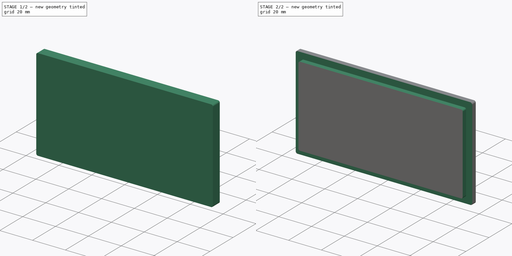
[diagram: build sequence overview — one tinted view per stage of 2, left to right]
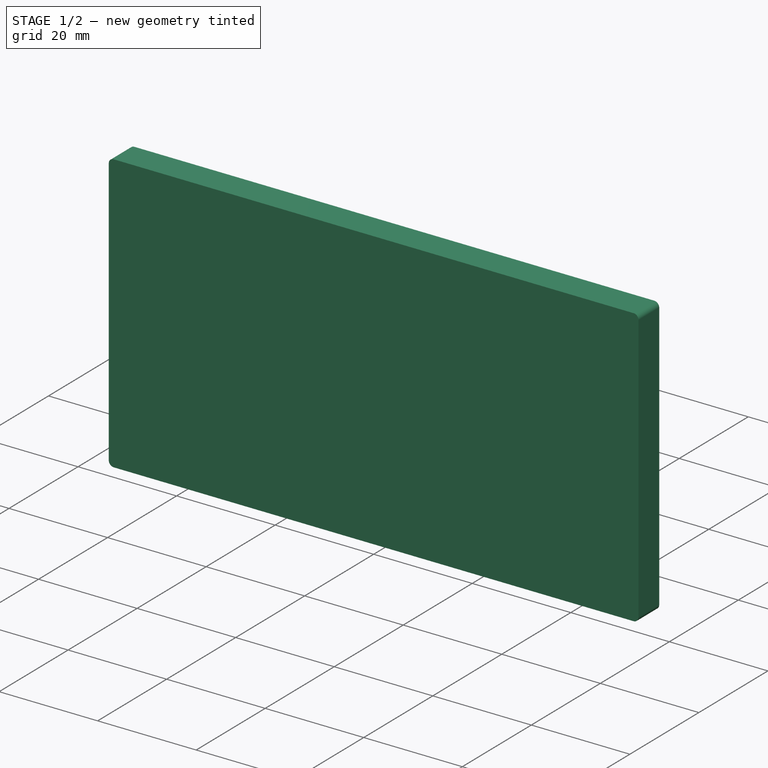
[diagram: stage 1 of 2 — iso view after this stage's code; geometry added in this stage tinted green]
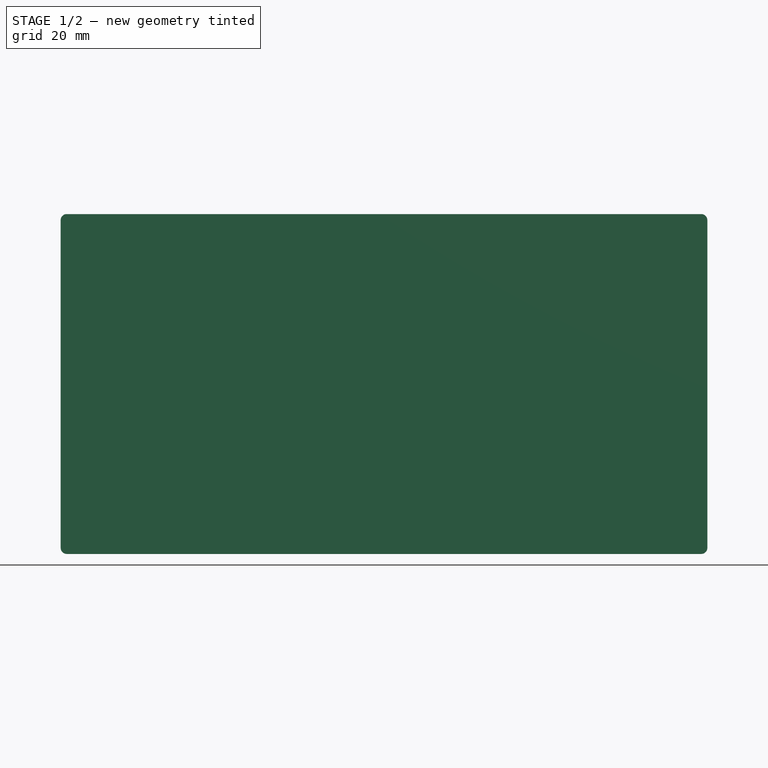
[diagram: stage 1 of 2 — front view after this stage's code; geometry added in this stage tinted green]
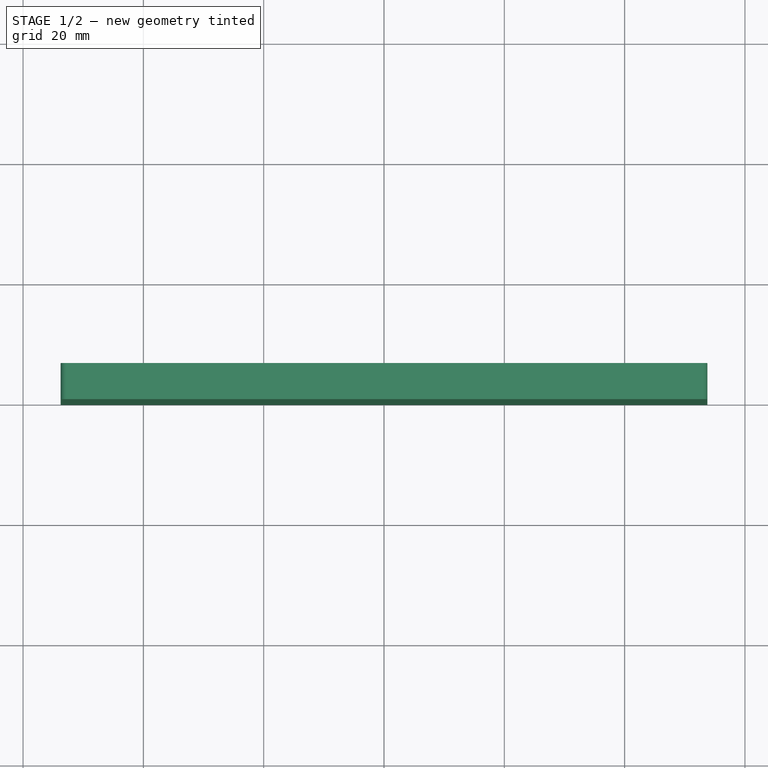
[diagram: stage 1 of 2 — top view after this stage's code; geometry added in this stage tinted green]
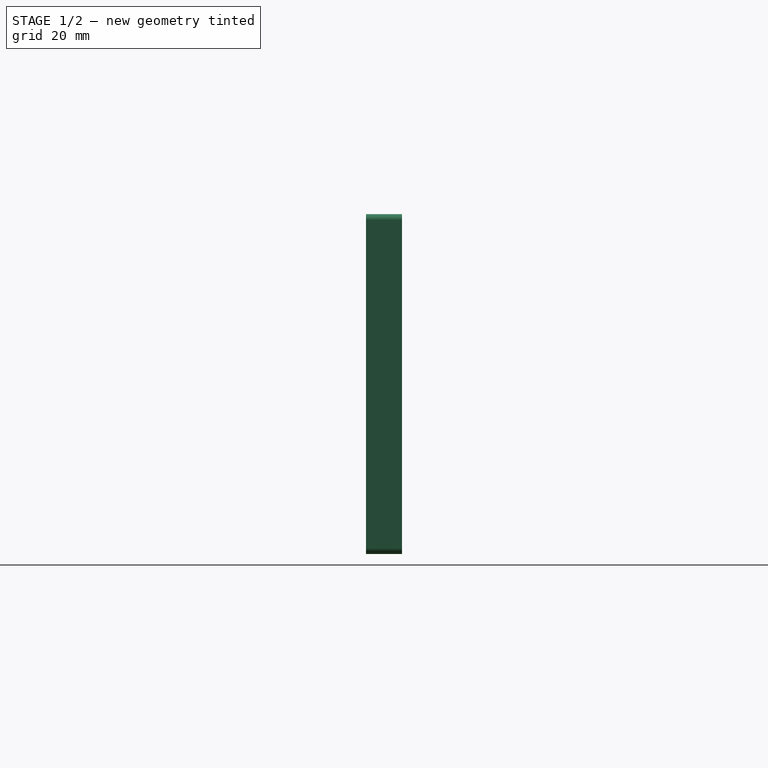
[diagram: stage 1 of 2 — right view after this stage's code; geometry added in this stage tinted green]
FCSTD DOCUMENT  (FreeCAD 0.19R24291 (Git))
Label: FrontWindow
License: All rights reserved
LicenseURL: http://en.wikipedia.org/wiki/All_rights_reserved
objects: PartDesign::CoordinateSystem×2, Sketcher::SketchObject×2, App::FeaturePython×1, PartDesign::Pad×1, PartDesign::Pocket×1, PartDesign::Body×1, App::Part×1
note: 9 computed .brp shape members not serialized (recipe doc carries the construction recipe); baked Part::Feature solids carry a one-line shape summary decoded from their .brp

FEATURE [PartDesign::CoordinateSystem] LCS_0
  AttacherType = Attacher::AttachEngine3D
  MapMode = 2
  Support = -> [X_Axis]
FEATURE [PartDesign::CoordinateSystem] LCS_0001
  AttacherType = Attacher::AttachEngine3D
  MapMode = 2
  Support = -> [X_Axis001]
FEATURE [Sketcher::SketchObject] Sketch
  FullyConstrained = true
  MapMode = 5
  Placement = pos=(0,0,0) rot=(1,0,0;1.5708rad)
  Support = -> [XZ_Plane001]
  expr: Constraints[31] = <<Attributes>>.LogicSpaceCornerRadius
  expr: Constraints[5] = <<Attributes>>.DrawerHeight_DH - <<Attributes>>.WallThickness_WT / 4 - <<Attributes>>.WallThickness_WT / 4
  expr: Constraints[4] = <<Attributes>>.DrawerWidth_DW + <<Attributes>>.SideLengt * 2 - (<<Attributes>>.SideLengt + <<Attributes>>.WallThickness_WT * 2 + <<Attributes>>.LogicSpaceCornerRadius) + <<Attributes>>.WallThickness_WT / 4 - (<<Attributes>>.DrawerWidth_DW + <<Attributes>>.SideLengt * 2 - (<<Attributes>>.SideLengt + <<Attributes>>.WallThickness_WT * 2 + <<Attributes>>.LogicSpaceCornerRadius + <<Attributes>>.LogicSpaceWidth) - <<Attributes>>.WallThickness_WT / 4)
  sketch-geometry (14):
    g0: LineSegment StartX=-52.75 StartY=28.25 StartZ=0 EndX=52.75 EndY=28.25 EndZ=0
    g1: LineSegment StartX=53.75 StartY=27.25 StartZ=0 EndX=53.75 EndY=-27.25 EndZ=0
    g2: LineSegment StartX=52.75 StartY=-28.25 StartZ=0 EndX=-52.75 EndY=-28.25 EndZ=0
    g3: LineSegment StartX=-53.75 StartY=-27.25 StartZ=0 EndX=-53.75 EndY=27.25 EndZ=0
    g4: ArcOfCircle CenterX=-52.75 CenterY=27.25 CenterZ=0 NormalX=0 NormalY=0 NormalZ=1 AngleXU=0 Radius=1 StartAngle=1.5708 EndAngle=3.14159
    g5: GeomPoint X=-53.75 Y=28.25 Z=0
    g6: ArcOfCircle CenterX=52.75 CenterY=27.25 CenterZ=0 NormalX=0 NormalY=0 NormalZ=1 AngleXU=0 Radius=1 StartAngle=-2.84e-14 EndAngle=1.5708
    g7: GeomPoint X=53.75 Y=28.25 Z=0
    g8: ArcOfCircle CenterX=52.75 CenterY=-27.25 CenterZ=0 NormalX=0 NormalY=0 NormalZ=1 AngleXU=0 Radius=1 StartAngle=4.71239 EndAngle=6.28319
    g9: GeomPoint X=53.75 Y=-28.25 Z=0
    g10: ArcOfCircle CenterX=-52.75 CenterY=-27.25 CenterZ=0 NormalX=0 NormalY=0 NormalZ=1 AngleXU=0 Radius=1 StartAngle=3.14159 EndAngle=4.71239
    g11: GeomPoint X=-53.75 Y=-28.25 Z=0
    g12: LineSegment StartX=-52.75 StartY=-27.25 StartZ=0 EndX=52.75 EndY=27.25 EndZ=0
    g13: LineSegment StartX=-52.75 StartY=27.25 StartZ=0 EndX=52.75 EndY=-27.25 EndZ=0
  constraints (32):
    c: Horizontal(g0)
    c: Horizontal(g2)
    c: Vertical(g1)
    c: Vertical(g3)
    c: Distance(g7,g5) = 107.5
    c: Distance(g11,g5) = 56.5
    c: PointOnObject(g5,g0)
    c: PointOnObject(g5,g3)
    c: Tangent(g0,g4) = 1.5708
    c: Tangent(g3,g4) = 1.5708
    c: PointOnObject(g7,g0)
    c: PointOnObject(g7,g1)
    c: Tangent(g0,g6) = 1.5708
    c: Tangent(g1,g6) = 1.5708
    c: PointOnObject(g9,g1)
    c: PointOnObject(g9,g2)
    c: Tangent(g1,g8) = 1.5708
    c: Tangent(g2,g8) = 1.5708
    c: PointOnObject(g11,g2)
    c: PointOnObject(g11,g3)
    c: Tangent(g2,g10) = 1.5708
    c: Tangent(g3,g10) = 1.5708
    c: Coincident(g12,g10)
    c: Coincident(g12,g6)
    c: Coincident(g13,g4)
    c: Coincident(g13,g8)
    c: PointOnObject(g-1,g13)
    c: PointOnObject(g-1,g12)
    c: Equal(g6,g4)
    c: Equal(g4,g10)
    c: Equal(g10,g8)
    c: Radius(g6) = 1
FEATURE [App::FeaturePython] PropertyBag  label="Attributes"  # WARN: FeaturePython — macro-defined, semantics opaque (R4)
  BackWidth = 395.8
  Back_Space = 100
  BottomDepth = 365.8
  BottomWidth = 365.8
  Bottom_Height_BH = 4
  Bottom_Space_Height = 20
  Box_Tolerance = 0.2
  Boxes_Depth = 5
  Boxes_Height = 40
  Boxes_Width = 5
  CableChannelHight = 15
  CableChannelRadius = 2
  CustomPropertyGroups = shape | attributes
  DrawerDepth_DD = 465.8
  DrawerHeight_DH = 64
  DrawerWidth_DW = 410.8
  FrontWindowRecessedDepth = 3
  FrontWindowThickness = 6
  HandelDimA = 100
  HandelDimB = 30
  HandelDimC = 140
  HandelDimD = 70
  HandelDimE = 30
  InnerWallDepth = 358.3
  LogicBoardScrewHeadDiameter = 6
  LogicBoardScrewHeadHeight = 3
  LogicBoardStandoffHoleDiameter = 3
  LogicBoardStandoffHoleSideSpace = 6
  LogicSpaceCornerRadius = 1
  LogicSpaceWidth = 100
  ScrewPreWhole = 3
  ScrewPreWholeDepth = 20
  SideLengt = 20
  WallThickness_WT = 15
  expr: InnerWallDepth = Boxes_Depth * 70mm + WallThickness_WT * 0.5 + Box_Tolerance * (Boxes_Width - 1)
  expr: DrawerDepth_DD = Boxes_Depth * 70mm + WallThickness_WT + Back_Space + Box_Tolerance * (Boxes_Width - 1)
  expr: BottomWidth = Boxes_Width * 70mm + WallThickness_WT + Box_Tolerance * (Boxes_Width - 1)
  expr: DrawerWidth_DW = Boxes_Width * 70mm + WallThickness_WT * 4 + Box_Tolerance * (Boxes_Width - 1)
  expr: BackWidth = DrawerWidth_DW - WallThickness_WT
  expr: DrawerHeight_DH = Boxes_Height + Bottom_Height_BH + Bottom_Space_Height
  expr: BottomDepth = Boxes_Depth * 70mm + WallThickness_WT + Box_Tolerance * (Boxes_Width - 1)
FEATURE [PartDesign::Pad] Pad
  Direction = (1,1,1)
  Length = 6
  Length2 = 100
  Placement = pos=(0,0,0) rot=(1,0,0;1.5708rad)
  Profile = -> Sketch
  Reversed = true
  Type = 0
  expr: Length = <<Attributes>>.FrontWindowThickness
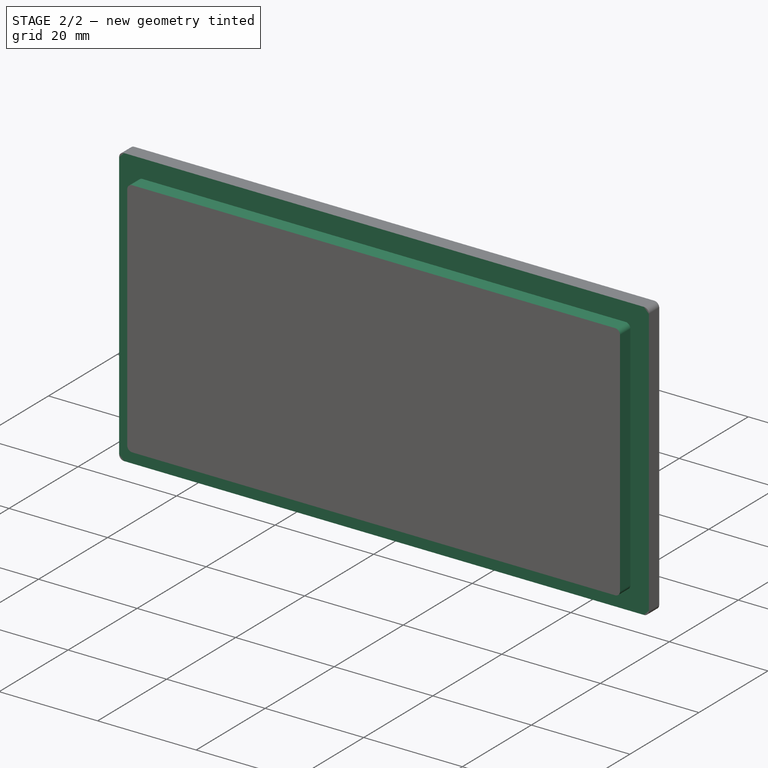
[diagram: stage 2 of 2 — iso view after this stage's code; geometry added in this stage tinted green]
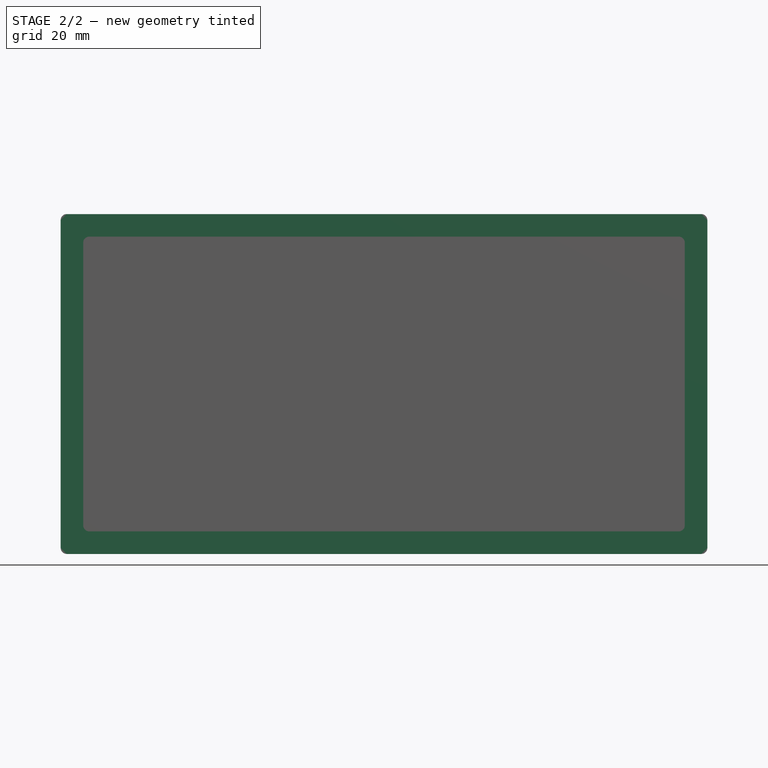
[diagram: stage 2 of 2 — front view after this stage's code; geometry added in this stage tinted green]
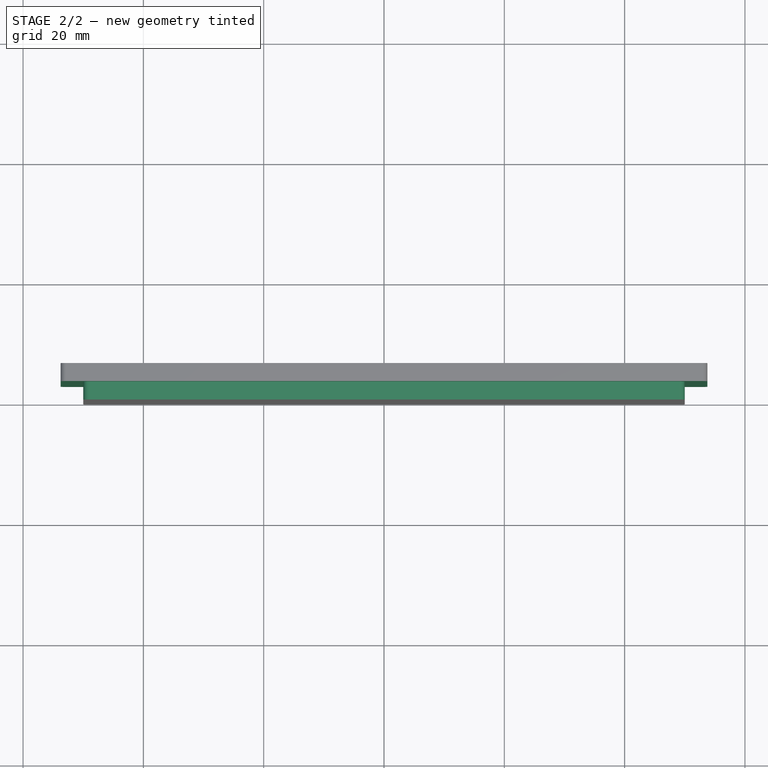
[diagram: stage 2 of 2 — top view after this stage's code; geometry added in this stage tinted green]
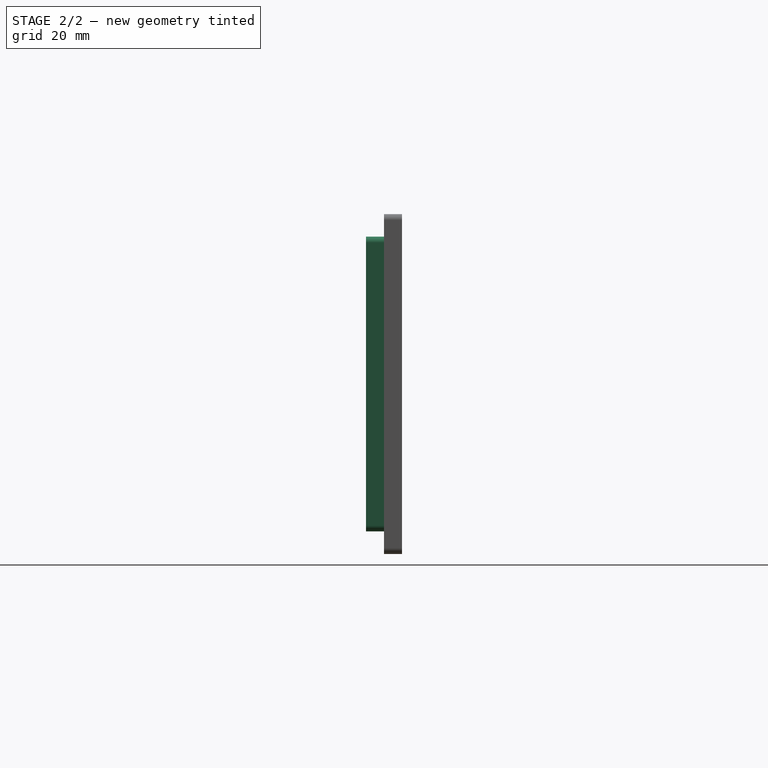
[diagram: stage 2 of 2 — right view after this stage's code; geometry added in this stage tinted green]
FEATURE [Sketcher::SketchObject] Sketch001
  FullyConstrained = true
  MapMode = 5
  Placement = pos=(0,0,0) rot=(1,0,0;1.5708rad)
  Support = -> [XZ_Plane001]
  expr: Constraints[47] = (<<Attributes>>.DrawerHeight_DH - <<Attributes>>.WallThickness_WT / 2 - <<Attributes>>.WallThickness_WT / 2) * 1.5
  expr: Constraints[46] = <<Attributes>>.LogicSpaceWidth * 1.5
  expr: Constraints[25] = <<Attributes>>.LogicSpaceCornerRadius
  expr: Constraints[5] = <<Attributes>>.LogicSpaceWidth
  expr: Constraints[4] = <<Attributes>>.DrawerHeight_DH - <<Attributes>>.WallThickness_WT / 2 - <<Attributes>>.WallThickness_WT / 2
  sketch-geometry (20):
    g0: LineSegment StartX=-49 StartY=24.5 StartZ=0 EndX=49 EndY=24.5 EndZ=0
    g1: LineSegment StartX=50 StartY=23.5 StartZ=0 EndX=50 EndY=-23.5 EndZ=0
    g2: LineSegment StartX=49 StartY=-24.5 StartZ=0 EndX=-49 EndY=-24.5 EndZ=0
    g3: LineSegment StartX=-50 StartY=-23.5 StartZ=0 EndX=-50 EndY=23.5 EndZ=0
    g4: ArcOfCircle CenterX=-49 CenterY=23.5 CenterZ=0 NormalX=0 NormalY=0 NormalZ=1 AngleXU=0 Radius=1 StartAngle=1.5708 EndAngle=3.14159
    g5: GeomPoint X=-50 Y=24.5 Z=0
    g6: ArcOfCircle CenterX=49 CenterY=23.5 CenterZ=0 NormalX=0 NormalY=0 NormalZ=1 AngleXU=0 Radius=1 StartAngle=1.1e-15 EndAngle=1.5708
    g7: GeomPoint X=50 Y=24.5 Z=0
    g8: ArcOfCircle CenterX=49 CenterY=-23.5 CenterZ=0 NormalX=0 NormalY=0 NormalZ=1 AngleXU=0 Radius=1 StartAngle=4.71239 EndAngle=6.28319
    g9: GeomPoint X=50 Y=-24.5 Z=0
    g10: ArcOfCircle CenterX=-49 CenterY=-23.5 CenterZ=0 NormalX=0 NormalY=0 NormalZ=1 AngleXU=0 Radius=1 StartAngle=3.14159 EndAngle=4.71239
    g11: GeomPoint X=-50 Y=-24.5 Z=0
    g12: LineSegment StartX=-49 StartY=23.5 StartZ=0 EndX=49 EndY=-23.5 EndZ=0
    g13: LineSegment StartX=49 StartY=23.5 StartZ=0 EndX=-49 EndY=-23.5 EndZ=0
    g14: LineSegment StartX=-75 StartY=36.75 StartZ=0 EndX=75 EndY=36.75 EndZ=0
    g15: LineSegment StartX=75 StartY=36.75 StartZ=0 EndX=75 EndY=-36.75 EndZ=0
    g16: LineSegment StartX=75 StartY=-36.75 StartZ=0 EndX=-75 EndY=-36.75 EndZ=0
    g17: LineSegment StartX=-75 StartY=-36.75 StartZ=0 EndX=-75 EndY=36.75 EndZ=0
    g18: LineSegment StartX=-75 StartY=36.75 StartZ=0 EndX=75 EndY=-36.75 EndZ=0
    g19: LineSegment StartX=-75 StartY=-36.75 StartZ=0 EndX=75 EndY=36.75 EndZ=0
  constraints (48):
    c: Horizontal(g0)
    c: Horizontal(g2)
    c: Vertical(g1)
    c: Vertical(g3)
    c: DistanceY(g11,g5) = 49
    c: DistanceX(g5,g7) = 100
    c: PointOnObject(g5,g0)
    c: PointOnObject(g5,g3)
    c: Tangent(g0,g4) = 1.5708
    c: Tangent(g3,g4) = 1.5708
    c: PointOnObject(g7,g0)
    c: PointOnObject(g7,g1)
    c: Tangent(g0,g6) = 1.5708
    c: Tangent(g1,g6) = 1.5708
    c: PointOnObject(g9,g1)
    c: PointOnObject(g9,g2)
    c: Tangent(g1,g8) = 1.5708
    c: Tangent(g2,g8) = 1.5708
    c: PointOnObject(g11,g2)
    c: PointOnObject(g11,g3)
    c: Tangent(g2,g10) = 1.5708
    c: Tangent(g3,g10) = 1.5708
    c: Equal(g6,g4)
    c: Equal(g4,g10)
    c: Equal(g10,g8)
    c: Radius(g6) = 1
    c: Coincident(g12,g4)
    c: Coincident(g12,g8)
    c: Coincident(g13,g6)
    c: Coincident(g13,g10)
    c: PointOnObject(g-1,g12)
    c: PointOnObject(g-1,g13)
    c: Coincident(g14,g15)
    c: Coincident(g15,g16)
    c: Coincident(g16,g17)
    c: Coincident(g17,g14)
    c: Horizontal(g14)
    c: Horizontal(g16)
    c: Vertical(g15)
    c: Vertical(g17)
    c: Coincident(g18,g14)
    c: Coincident(g18,g15)
    c: Coincident(g19,g16)
    c: Coincident(g19,g14)
    c: PointOnObject(g-1,g18)
    c: PointOnObject(g-1,g19)
    c: Distance(g14) = 150
    c: Distance(g17) = 73.5
FEATURE [PartDesign::Pocket] Pocket
  BaseFeature = -> Pad
  Length = 3
  Length2 = 100
  Placement = pos=(0,0,0) rot=(1,0,0;1.5708rad)
  Profile = -> Sketch001
  Type = 0
  expr: Length = <<Attributes>>.FrontWindowRecessedDepth
FEATURE [PartDesign::Body] FrontWindow001
  Group = -> [LCS_0001,Sketch,Pad,Sketch001,Pocket]
  Origin = -> Origin001
  Tip = -> Pocket
FEATURE [App::Part] FrontWindow
  Group = -> [LCS_0,FrontWindow001,PropertyBag]
  Origin = -> Origin
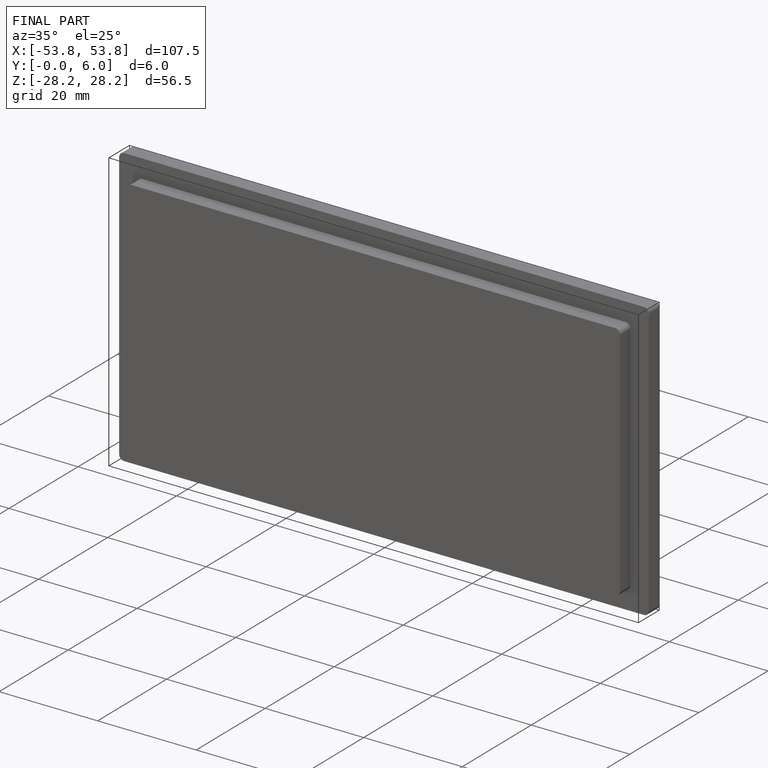
[diagram: finished part — iso view with bounding-box wireframe]
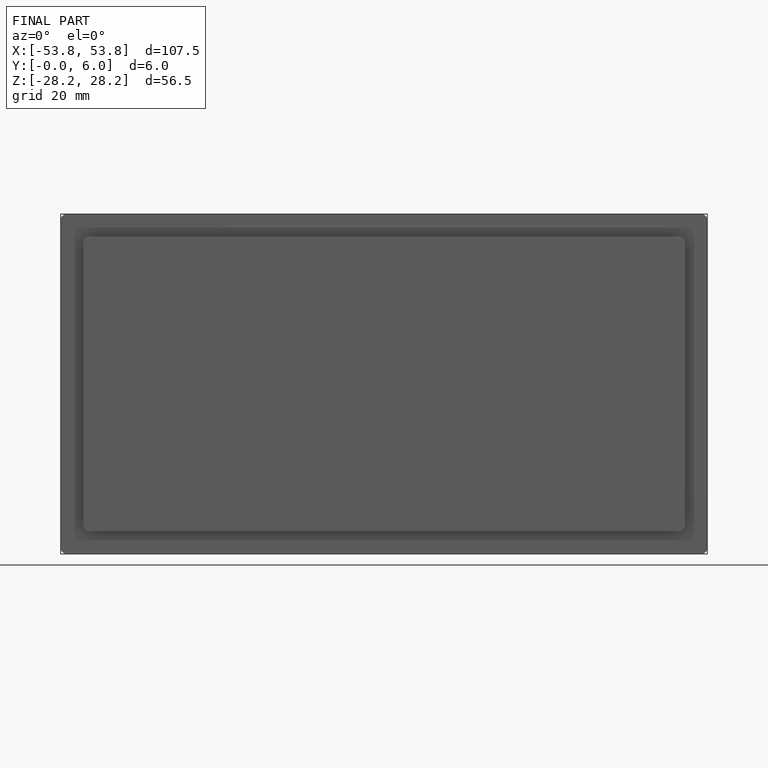
[diagram: finished part — front view with bounding-box wireframe]
